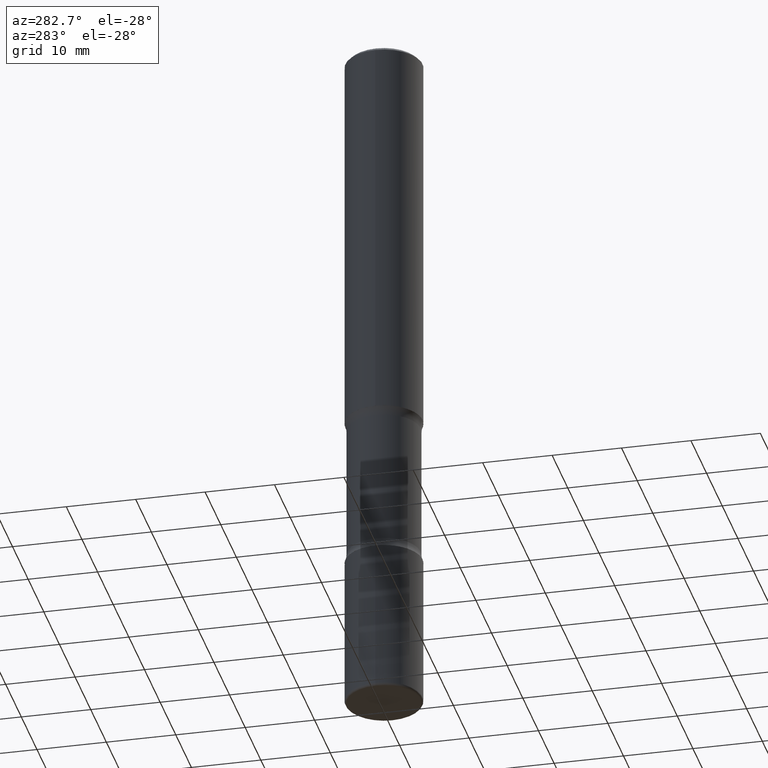
[diagram: clean part render]
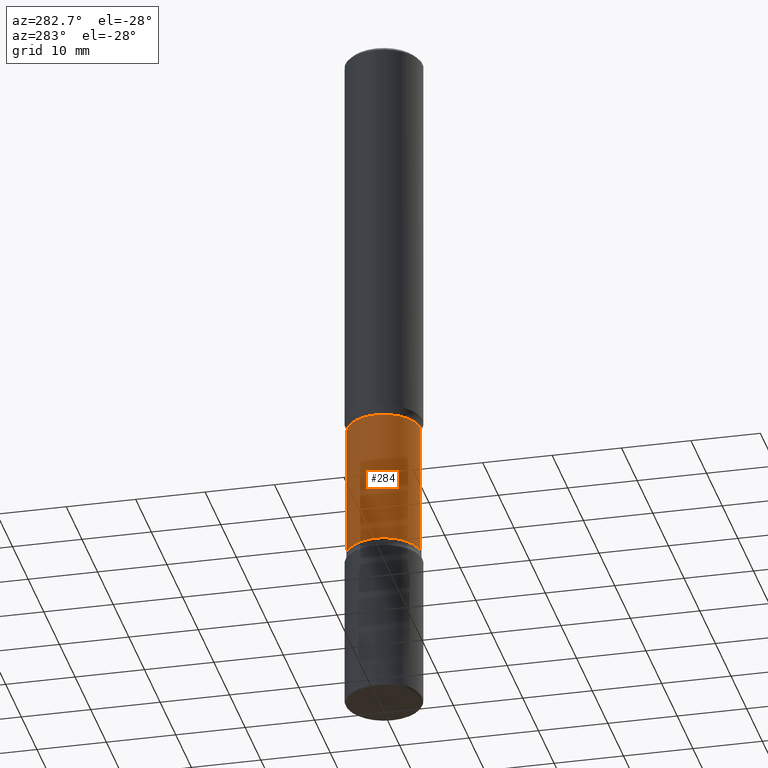
[diagram: same view with one face highlighted and labeled with its STEP entity id]
A machine part, auxiliary view. The second image highlights one B-rep face of the part: STEP entity #284.
In plain terms, the highlighted cylindrical surface (partial cylindrical patch) has radius 5.2784 mm, axis along (0, -0, -1).
Its self-contained STEP definition (entity closure, byte-faithful):
#30 = CARTESIAN_POINT ( 'NONE',  ( 1.451146931456732915E-15, 0.2078124999999918787, -2.301134588037355932 ) ) ;
#44 = EDGE_CURVE ( 'NONE', #121, #247, #298, .T. ) ;
#57 = CARTESIAN_POINT ( 'NONE',  ( -1.463215588587134090E-15, -0.2078125000000107248, -3.073865411962643179 ) ) ;
#89 = CARTESIAN_POINT ( 'NONE',  ( -1.463215588587155192E-15, -0.2078125000000081712, -2.301134588037354156 ) ) ;
#90 = EDGE_CURVE ( 'NONE', #557, #247, #404, .T. ) ;
#93 = VERTEX_POINT ( 'NONE', #89 ) ;
#121 = VERTEX_POINT ( 'NONE', #30 ) ;
#127 = AXIS2_PLACEMENT_3D ( 'NONE', #385, #210, #338 ) ;
#137 = EDGE_CURVE ( 'NONE', #93, #121, #485, .T. ) ;
#152 = AXIS2_PLACEMENT_3D ( 'NONE', #512, #315, #266 ) ;
#187 = CARTESIAN_POINT ( 'NONE',  ( 1.451146931456752440E-15, 0.2078124999999892975, -3.073865411962644068 ) ) ;
#192 = ORIENTED_EDGE ( 'NONE', *, *, #225, .F. ) ;
#193 = VECTOR ( 'NONE', #428, 39.37007874015748143 ) ;
#197 = EDGE_LOOP ( 'NONE', ( #192, #206, #272, #280 ) ) ;
#206 = ORIENTED_EDGE ( 'NONE', *, *, #137, .T. ) ;
#210 = DIRECTION ( 'NONE',  ( 2.542508401758147997E-29, -3.352515114831814446E-15, -1.000000000000000000 ) ) ;
#211 = VECTOR ( 'NONE', #445, 39.37007874015748143 ) ;
#223 = AXIS2_PLACEMENT_3D ( 'NONE', #253, #265, #508 ) ;
#225 = EDGE_CURVE ( 'NONE', #93, #557, #306, .T. ) ;
#247 = VERTEX_POINT ( 'NONE', #187 ) ;
#253 = CARTESIAN_POINT ( 'NONE',  ( 7.512079899623131265E-29, -1.073944970459889485E-14, -3.073865411962643623 ) ) ;
#265 = DIRECTION ( 'NONE',  ( 2.542508401758147997E-29, -3.352515114831814446E-15, -1.000000000000000000 ) ) ;
#266 = DIRECTION ( 'NONE',  ( 6.982962677686265133E-15, 1.000000000000000000, -2.629146941270869802E-15 ) ) ;
#272 = ORIENTED_EDGE ( 'NONE', *, *, #44, .T. ) ;
#280 = ORIENTED_EDGE ( 'NONE', *, *, #90, .F. ) ;
#284 = ADVANCED_FACE ( 'NONE', ( #397 ), #552, .T. ) ;
#298 = LINE ( 'NONE', #506, #193 ) ;
#306 = LINE ( 'NONE', #523, #211 ) ;
#315 = DIRECTION ( 'NONE',  ( 2.542508401758147997E-29, -3.352515114831814446E-15, -1.000000000000000000 ) ) ;
#338 = DIRECTION ( 'NONE',  ( 6.982962677686265133E-15, 1.000000000000000000, -3.943720411906303717E-15 ) ) ;
#385 = CARTESIAN_POINT ( 'NONE',  ( 5.547405287495589114E-29, -8.148857937692923452E-15, -2.301134588037355044 ) ) ;
#397 = FACE_OUTER_BOUND ( 'NONE', #197, .T. ) ;
#404 = CIRCLE ( 'NONE', #223, 0.2078125000000000111 ) ;
#428 = DIRECTION ( 'NONE',  ( 2.542508401758147997E-29, -3.352515114831814446E-15, -1.000000000000000000 ) ) ;
#445 = DIRECTION ( 'NONE',  ( 2.542508401758147997E-29, -3.352515114831814446E-15, -1.000000000000000000 ) ) ;
#485 = CIRCLE ( 'NONE', #127, 0.2078125000000000389 ) ;
#506 = CARTESIAN_POINT ( 'NONE',  ( 1.451146931456775908E-15, 0.2078124999999861888, -4.000000000000000888 ) ) ;
#508 = DIRECTION ( 'NONE',  ( 6.982962677686265133E-15, 1.000000000000000000, -2.629146941270869802E-15 ) ) ;
#512 = CARTESIAN_POINT ( 'NONE',  ( 9.866784870866931853E-29, -1.384432990936266734E-14, -4.000000000000000000 ) ) ;
#523 = CARTESIAN_POINT ( 'NONE',  ( -1.425697240161797519E-15, -0.2078125000000138334, -3.999999999999999556 ) ) ;
#552 = CYLINDRICAL_SURFACE ( 'NONE', #152, 0.2078125000000000111 ) ;
#557 = VERTEX_POINT ( 'NONE', #57 ) ;